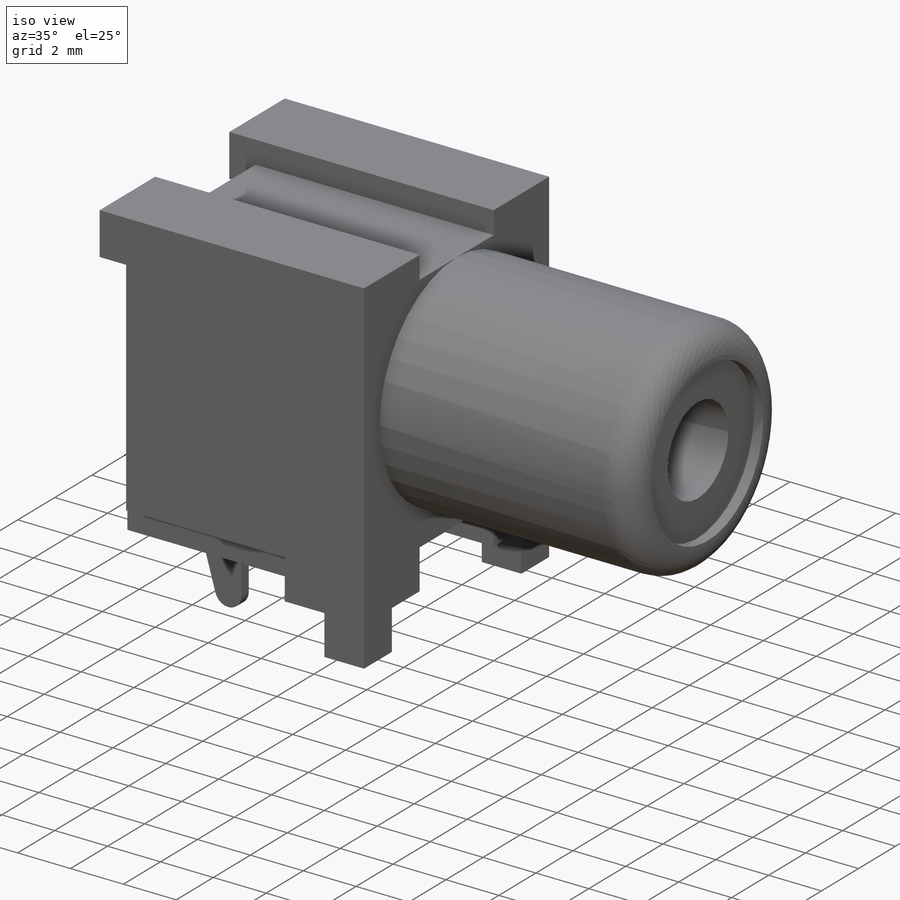
[diagram: iso view]
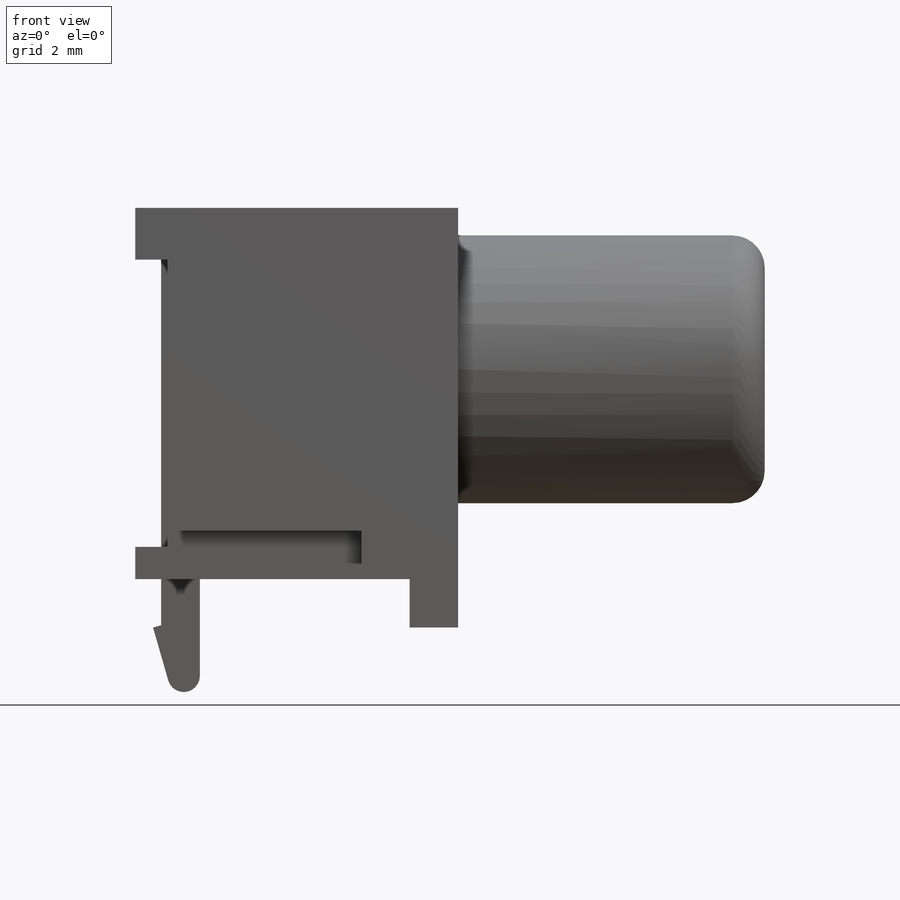
[diagram: front view]
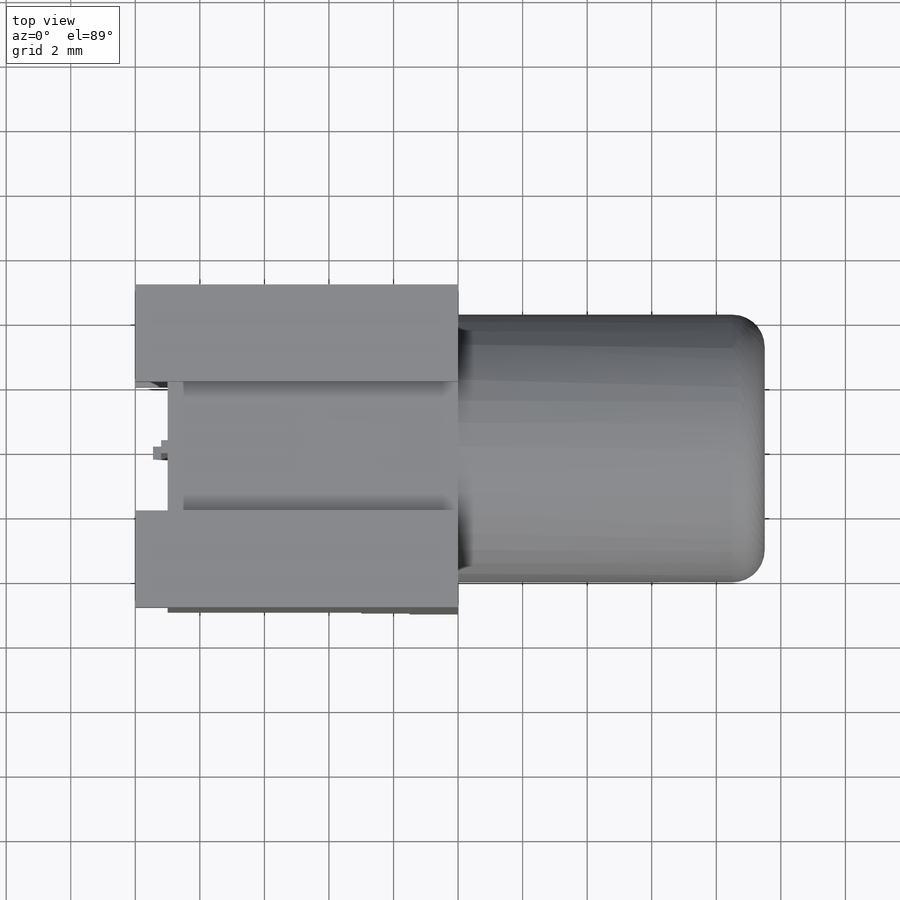
[diagram: top view]
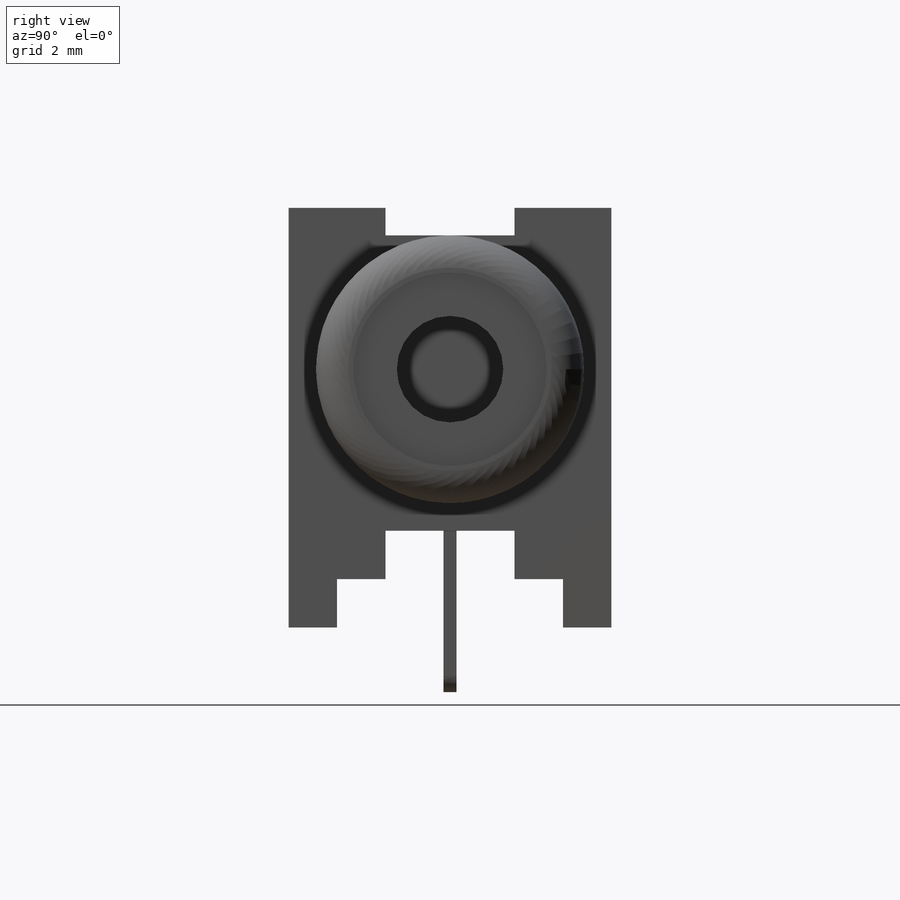
[diagram: right view]
SOLIDWORKS PART (.sldprt)
format: sldprt  version: not decoded by parser v0  size: 348,160 bytes
history: native  units: mm
features: sketch x15, extrude x8, plane x5, cut_extrude x4, material x1, revolve x1, hole x1, fillet x1 (+9 scaffold rows collapsed)
feature tree (45):
  scaffold x9  (default folders/planes/origin — collapsed)
  material  "Material <not specified>"
  plane  "Plano frontal"
  plane  "Plano superior"
  plane  "Plano direito"
  plane  "Plano1"  Offset=10mm
  sketch  "Esboço1"
  extrude  "Ressalto-extrusão1"  Depth=9mm
  sketch  "Esboço2"
  cut_extrude  "Corte-extrusão1"  Depth=9mm
  sketch  "Esboço3"
  extrude  "Ressalto-extrusão2"  Depth=1mm
  sketch  "Esboço4"
  extrude  "Ressalto-extrusão3"  Depth=1mm
  sketch  "Esboço5"
  cut_extrude  "Corte-extrusão2"  Depth=9mm
  sketch  "Esboço6"
  extrude  "Ressalto-extrusão4"  Depth=1mm
  sketch  "Esboço7"
  cut_extrude  "Corte-extrusão3"  Depth=6mm
  sketch  "Esboço8"
  extrude  "Ressalto-extrusão5"  Depth=1mm
  sketch  "Esboço9"
  cut_extrude  "Corte-extrusão4"  Depth=6mm
  sketch  "Esboço10"
  extrude  "Ressalto-extrusão6"  Depth=1.5mm
  sketch  "Esboço11"
  extrude  "Ressalto-extrusão7"  Depth=1.5mm
  sketch  "Esboço12"
  revolve  "Revolução1"  Angle=360deg
  hole  "Rebaixo para parafuso de máquina de cabeça sextavada de M31"  Diameter=3.3mm Depth=9.5mm
  sketch  "Esboço14"
  sketch  "Esboço13"  dims[hole-wizard template sketch: 28 standard entries collapsed; hole parameters kept: c8.Hole Dia.=3.3mm c8.Hole Depth=9.5mm c8.C'Bore Dia.=6.0mm c8.C'Bore Depth=0.375mm c8.D5=~14.816244mm c8.Drill Angle=180.0deg]
  plane  "Plano2"
  sketch  "Esboço16"
  fillet  "Filete1"  Radius=1mm
  extrude  "Ressalto-extrusão9"  Depth=0.4mm
decode coverage: 16 of 30 modeling features carry decoded parameters
note: ~ marks probable driven/reference dimensions
note: suppression state not decoded; provenance and decode notes live in map.json
